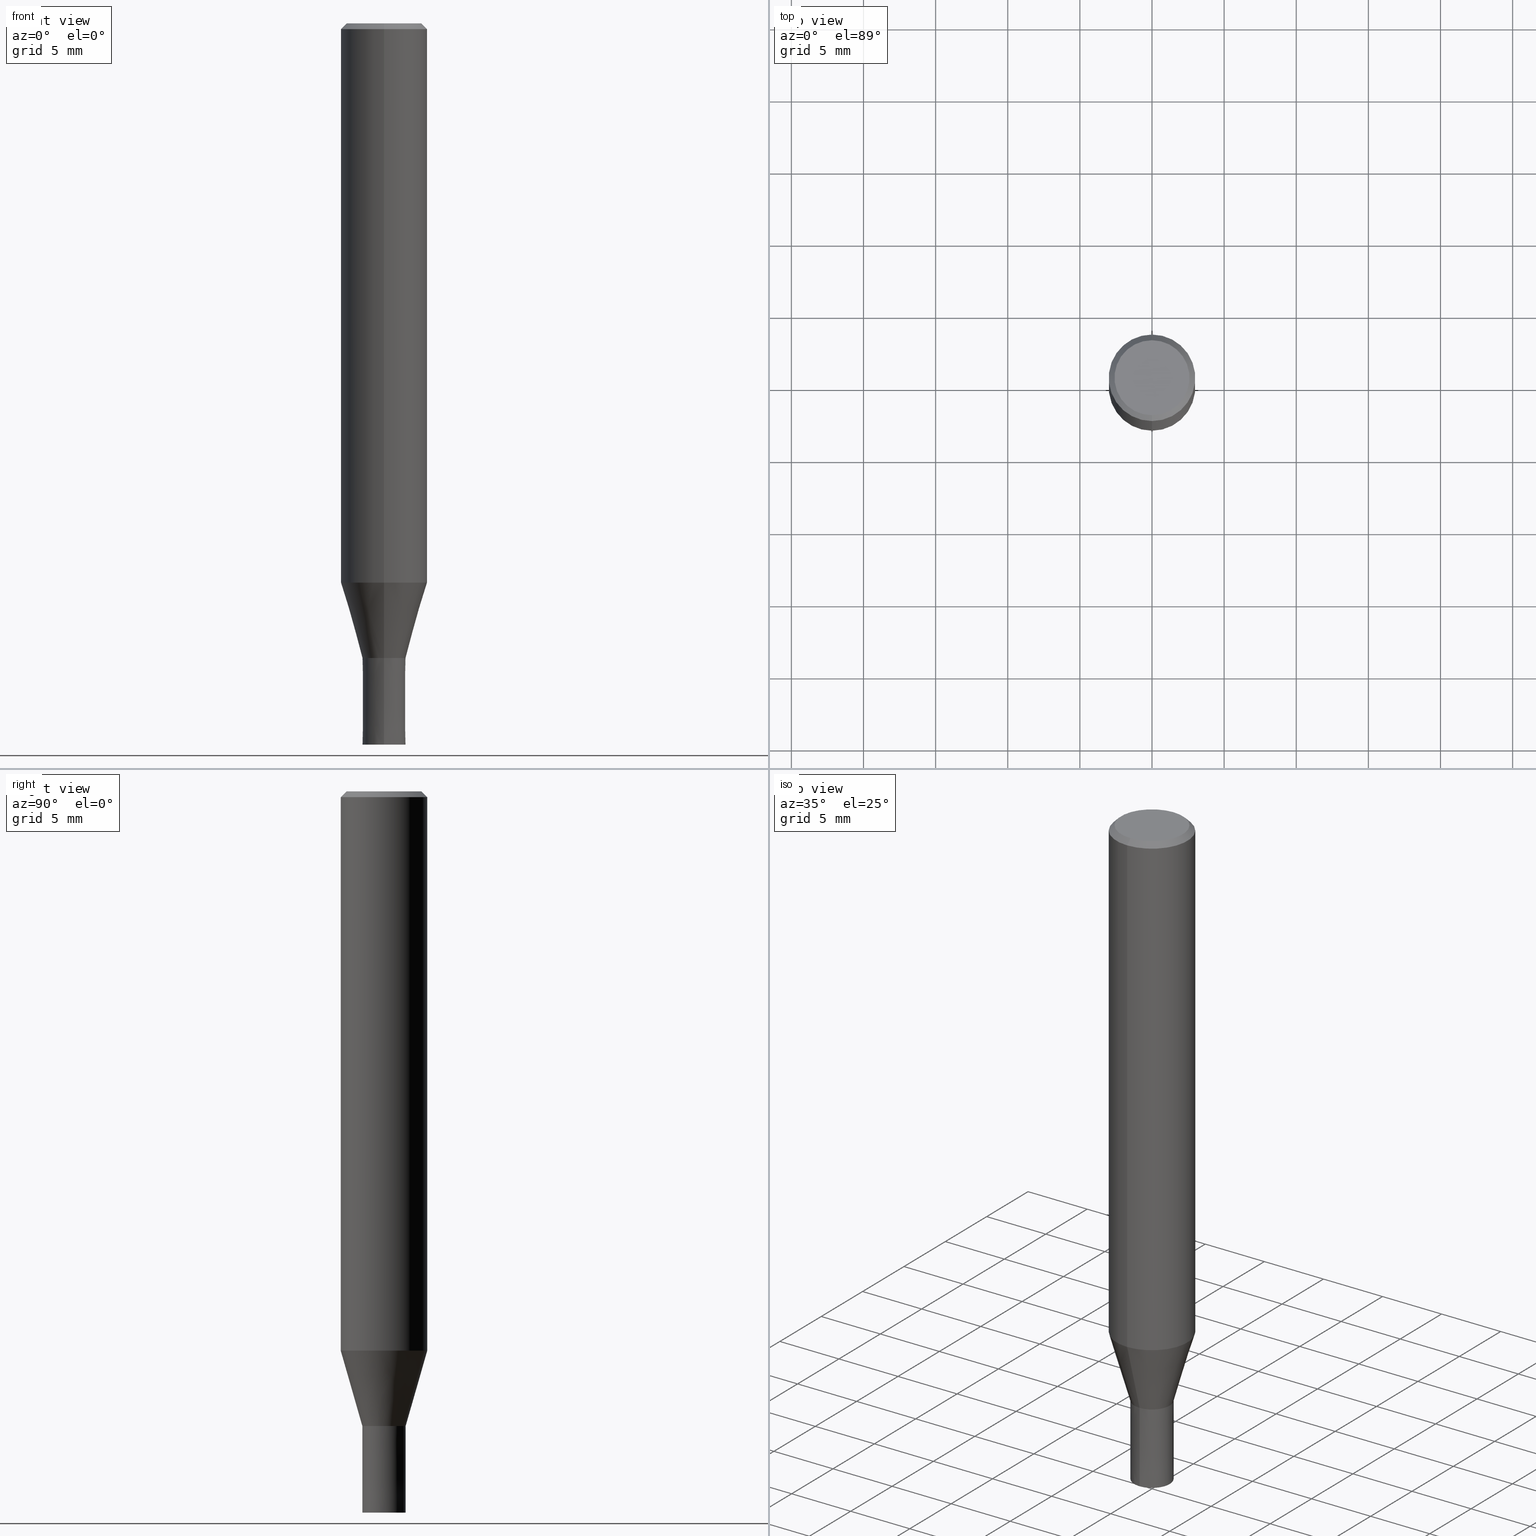
[diagram: canonical four-view strip — front | top / right | iso, engineering-drawing reading convention]
A machine part, canonical four-view strip (front | top / right | iso — engineering-drawing reading convention). The complete STEP part file that produces these views, byte-faithful:
ISO-10303-21;
HEADER;
FILE_DESCRIPTION(('no description'),'unknown implementation level');
FILE_NAME('HMS3030-0600-Huellk.stp','  ',('CIMSOURCE GmbH'),('CADClick - KiM GmbH - www.kimweb.de'),'unknown preprocess','ACIS','unknown authorization');
FILE_SCHEMA(('automotive_design'));
ENDSEC;
DATA;
#1=MECHANICAL_DESIGN_GEOMETRIC_PRESENTATION_REPRESENTATION(' ',(#14,#15,#16,#17,#18,#19,#20,#21,#22,#23,#24,#25,#26,#27,#28,#29,#30,#31,#32,#33,#34,#35,#36,#37,#38,#39,#40,#41,#42,#43,#44,#45,#46,#47,#48,#49,#50,#51,#52,#53,#54,#55,#56,#57,#58,#59,#60,#61,#62,#63,#64,#65,#66,#67,#68,#69,#70,#71,#72,#73,#74,#75,#76,#77,#78,#79,#80,#81,#82,#83,#84,#85,#86,#87,#88,#89),#10);
#2=PRODUCT_DEFINITION_CONTEXT('',#90,'design');
#3=APPLICATION_PROTOCOL_DEFINITION('INTERNATIONAL STANDARD','automotive_design',1994,#90);
#4=PRODUCT_CATEGORY_RELATIONSHIP('NONE','NONE',#91,#92);
#5=SHAPE_DEFINITION_REPRESENTATION(#93,#94);
#6=PRODUCT_DEFINITION_CONTEXT('',#95,'design');
#7=APPLICATION_PROTOCOL_DEFINITION('INTERNATIONAL STANDARD','automotive_design',1994,#95);
#8=PRODUCT_CATEGORY_RELATIONSHIP('NONE','NONE',#96,#97);
#9=SHAPE_DEFINITION_REPRESENTATION(#98,#99);
#10= (GEOMETRIC_REPRESENTATION_CONTEXT(3)GLOBAL_UNCERTAINTY_ASSIGNED_CONTEXT((#102))GLOBAL_UNIT_ASSIGNED_CONTEXT((#104,#105,#106))REPRESENTATION_CONTEXT('NONE','WORKSPACE'));
#14=STYLED_ITEM('',(#108),#109);
#15=STYLED_ITEM('',(#110),#111);
#16=STYLED_ITEM('',(#112),#113);
#17=STYLED_ITEM('',(#114),#115);
#18=STYLED_ITEM('',(#116),#117);
#19=STYLED_ITEM('',(#118),#119);
#20=STYLED_ITEM('',(#120),#121);
#21=STYLED_ITEM('',(#122),#123);
#22=STYLED_ITEM('',(#124),#125);
#23=STYLED_ITEM('',(#126),#127);
#24=STYLED_ITEM('',(#128),#129);
#25=STYLED_ITEM('',(#130),#131);
#26=STYLED_ITEM('',(#132),#133);
#27=STYLED_ITEM('',(#134),#135);
#28=STYLED_ITEM('',(#136),#137);
#29=STYLED_ITEM('',(#138),#139);
#30=STYLED_ITEM('',(#140),#141);
#31=STYLED_ITEM('',(#142),#143);
#32=STYLED_ITEM('',(#144),#145);
#33=STYLED_ITEM('',(#146),#147);
#34=STYLED_ITEM('',(#148),#149);
#35=STYLED_ITEM('',(#150),#151);
#36=STYLED_ITEM('',(#152),#153);
#37=STYLED_ITEM('',(#154),#155);
#38=STYLED_ITEM('',(#156),#157);
#39=STYLED_ITEM('',(#158),#159);
#40=STYLED_ITEM('',(#160),#161);
#41=STYLED_ITEM('',(#162),#163);
#42=STYLED_ITEM('',(#164),#165);
#43=STYLED_ITEM('',(#166),#167);
#44=STYLED_ITEM('',(#168),#169);
#45=STYLED_ITEM('',(#170),#171);
#46=STYLED_ITEM('',(#172),#173);
#47=STYLED_ITEM('',(#174),#175);
#48=STYLED_ITEM('',(#176),#177);
#49=STYLED_ITEM('',(#178),#179);
#50=STYLED_ITEM('',(#180),#181);
#51=STYLED_ITEM('',(#182),#183);
#52=STYLED_ITEM('',(#184),#185);
#53=STYLED_ITEM('',(#186),#187);
#54=STYLED_ITEM('',(#188),#189);
#55=STYLED_ITEM('',(#190),#191);
#56=STYLED_ITEM('',(#192),#193);
#57=STYLED_ITEM('',(#194),#195);
#58=STYLED_ITEM('',(#196),#197);
#59=STYLED_ITEM('',(#198),#199);
#60=STYLED_ITEM('',(#200),#201);
#61=STYLED_ITEM('',(#202),#203);
#62=STYLED_ITEM('',(#204),#205);
#63=STYLED_ITEM('',(#206),#207);
#64=STYLED_ITEM('',(#208),#209);
#65=STYLED_ITEM('',(#210),#211);
#66=STYLED_ITEM('',(#212),#213);
#67=STYLED_ITEM('',(#214),#215);
#68=STYLED_ITEM('',(#216),#217);
#69=STYLED_ITEM('',(#218),#219);
#70=STYLED_ITEM('',(#220),#221);
#71=STYLED_ITEM('',(#222),#223);
#72=STYLED_ITEM('',(#224),#225);
#73=STYLED_ITEM('',(#226),#227);
#74=STYLED_ITEM('',(#228),#229);
#75=STYLED_ITEM('',(#230),#231);
#76=STYLED_ITEM('',(#232),#233);
#77=STYLED_ITEM('',(#234),#235);
#78=STYLED_ITEM('',(#236),#237);
#79=STYLED_ITEM('',(#238),#239);
#80=STYLED_ITEM('',(#240),#241);
#81=STYLED_ITEM('',(#242),#243);
#82=STYLED_ITEM('',(#244),#245);
#83=STYLED_ITEM('',(#246),#247);
#84=STYLED_ITEM('',(#248),#249);
#85=STYLED_ITEM('',(#250),#251);
#86=STYLED_ITEM('',(#252),#253);
#87=STYLED_ITEM('',(#254),#255);
#88=STYLED_ITEM('',(#256),#257);
#89=STYLED_ITEM('',(#258),#259);
#90=APPLICATION_CONTEXT(' ');
#91=PRODUCT_CATEGORY('part','NONE');
#92=PRODUCT_RELATED_PRODUCT_CATEGORY('detail',' ',(#260));
#93=PRODUCT_DEFINITION_SHAPE('NONE','NONE',#261);
#94=ADVANCED_BREP_SHAPE_REPRESENTATION('1',(#223,#262),#10);
#95=APPLICATION_CONTEXT(' ');
#96=PRODUCT_CATEGORY('part','NONE');
#97=PRODUCT_RELATED_PRODUCT_CATEGORY('detail',' ',(#263));
#98=PRODUCT_DEFINITION_SHAPE('NONE','NONE',#264);
#99=ADVANCED_BREP_SHAPE_REPRESENTATION('2',(#153,#265),#10);
#102=UNCERTAINTY_MEASURE_WITH_UNIT(LENGTH_MEASURE(1.0E-006),#104,'','');
#104= (CONVERSION_BASED_UNIT('MILLIMETRE',#268)LENGTH_UNIT()NAMED_UNIT(#271));
#105= (NAMED_UNIT(#273)PLANE_ANGLE_UNIT()SI_UNIT($,.RADIAN.));
#106= (NAMED_UNIT(#273)SOLID_ANGLE_UNIT()SI_UNIT($,.STERADIAN.));
#108=PRESENTATION_STYLE_ASSIGNMENT((#279));
#109=EDGE_CURVE('',#211,#131,#280,.T.);
#110=PRESENTATION_STYLE_ASSIGNMENT((#281));
#111=EDGE_CURVE('',#231,#177,#282,.T.);
#112=PRESENTATION_STYLE_ASSIGNMENT((#283));
#113=ADVANCED_FACE('',(#284),#285,.T.);
#114=PRESENTATION_STYLE_ASSIGNMENT((#286));
#115=ADVANCED_FACE('',(#287),#288,.T.);
#116=PRESENTATION_STYLE_ASSIGNMENT((#289));
#117=VERTEX_POINT('',#290);
#118=PRESENTATION_STYLE_ASSIGNMENT((#291));
#119=ADVANCED_FACE('',(#292),#293,.T.);
#120=PRESENTATION_STYLE_ASSIGNMENT((#294));
#121=EDGE_CURVE('',#235,#151,#295,.T.);
#122=PRESENTATION_STYLE_ASSIGNMENT((#296));
#123=EDGE_CURVE('',#219,#205,#297,.T.);
#124=PRESENTATION_STYLE_ASSIGNMENT((#298));
#125=ADVANCED_FACE('',(#299,#300),#301,.T.);
#126=PRESENTATION_STYLE_ASSIGNMENT((#302));
#127=ADVANCED_FACE('',(#303),#304,.T.);
#128=PRESENTATION_STYLE_ASSIGNMENT((#305));
#129=EDGE_CURVE('',#179,#171,#306,.T.);
#130=PRESENTATION_STYLE_ASSIGNMENT((#307));
#131=VERTEX_POINT('',#308);
#132=PRESENTATION_STYLE_ASSIGNMENT((#309));
#133=VERTEX_POINT('',#310);
#134=PRESENTATION_STYLE_ASSIGNMENT((#311));
#135=VERTEX_POINT('',#312);
#136=PRESENTATION_STYLE_ASSIGNMENT((#313));
#137=VERTEX_POINT('',#314);
#138=PRESENTATION_STYLE_ASSIGNMENT((#315));
#139=ADVANCED_FACE('',(#316),#317,.T.);
#140=PRESENTATION_STYLE_ASSIGNMENT((#318));
#141=EDGE_CURVE('',#177,#175,#319,.T.);
#142=PRESENTATION_STYLE_ASSIGNMENT((#320));
#143=EDGE_CURVE('',#249,#231,#321,.T.);
#144=PRESENTATION_STYLE_ASSIGNMENT((#322));
#145=VERTEX_POINT('',#323);
#146=PRESENTATION_STYLE_ASSIGNMENT((#324));
#147=EDGE_CURVE('',#137,#189,#325,.T.);
#148=PRESENTATION_STYLE_ASSIGNMENT((#326));
#149=EDGE_CURVE('',#257,#135,#327,.T.);
#150=PRESENTATION_STYLE_ASSIGNMENT((#328));
#151=VERTEX_POINT('',#329);
#152=PRESENTATION_STYLE_ASSIGNMENT((#330));
#153=MANIFOLD_SOLID_BREP('2',#331);
#154=PRESENTATION_STYLE_ASSIGNMENT((#332));
#155=EDGE_CURVE('',#189,#137,#333,.T.);
#156=PRESENTATION_STYLE_ASSIGNMENT((#334));
#157=EDGE_CURVE('',#133,#135,#335,.T.);
#158=PRESENTATION_STYLE_ASSIGNMENT((#336));
#159=ADVANCED_FACE('',(#337),#338,.T.);
#160=PRESENTATION_STYLE_ASSIGNMENT((#339));
#161=EDGE_CURVE('',#145,#197,#340,.T.);
#162=PRESENTATION_STYLE_ASSIGNMENT((#341));
#163=ADVANCED_FACE('',(#342),#343,.T.);
#164=PRESENTATION_STYLE_ASSIGNMENT((#344));
#165=EDGE_CURVE('',#195,#117,#345,.T.);
#166=PRESENTATION_STYLE_ASSIGNMENT((#346));
#167=EDGE_CURVE('',#197,#137,#347,.T.);
#168=PRESENTATION_STYLE_ASSIGNMENT((#348));
#169=EDGE_CURVE('',#131,#211,#349,.T.);
#170=PRESENTATION_STYLE_ASSIGNMENT((#350));
#171=VERTEX_POINT('',#351);
#172=PRESENTATION_STYLE_ASSIGNMENT((#352));
#173=EDGE_CURVE('',#131,#117,#353,.T.);
#174=PRESENTATION_STYLE_ASSIGNMENT((#354));
#175=VERTEX_POINT('',#355);
#176=PRESENTATION_STYLE_ASSIGNMENT((#356));
#177=VERTEX_POINT('',#357);
#178=PRESENTATION_STYLE_ASSIGNMENT((#358));
#179=VERTEX_POINT('',#359);
#180=PRESENTATION_STYLE_ASSIGNMENT((#360));
#181=EDGE_CURVE('',#257,#245,#361,.T.);
#182=PRESENTATION_STYLE_ASSIGNMENT((#362));
#183=EDGE_CURVE('',#195,#211,#363,.T.);
#184=PRESENTATION_STYLE_ASSIGNMENT((#364));
#185=EDGE_CURVE('',#205,#131,#365,.T.);
#186=PRESENTATION_STYLE_ASSIGNMENT((#366));
#187=ADVANCED_FACE('',(#367),#368,.F.);
#188=PRESENTATION_STYLE_ASSIGNMENT((#369));
#189=VERTEX_POINT('',#370);
#190=PRESENTATION_STYLE_ASSIGNMENT((#371));
#191=EDGE_CURVE('',#189,#145,#372,.T.);
#192=PRESENTATION_STYLE_ASSIGNMENT((#373));
#193=EDGE_CURVE('',#175,#249,#374,.T.);
#194=PRESENTATION_STYLE_ASSIGNMENT((#375));
#195=VERTEX_POINT('',#376);
#196=PRESENTATION_STYLE_ASSIGNMENT((#377));
#197=VERTEX_POINT('',#378);
#198=PRESENTATION_STYLE_ASSIGNMENT((#379));
#199=EDGE_CURVE('',#171,#151,#380,.T.);
#200=PRESENTATION_STYLE_ASSIGNMENT((#381));
#201=EDGE_CURVE('',#135,#133,#382,.T.);
#202=PRESENTATION_STYLE_ASSIGNMENT((#383));
#203=ADVANCED_FACE('',(#384),#385,.T.);
#204=PRESENTATION_STYLE_ASSIGNMENT((#386));
#205=VERTEX_POINT('',#387);
#206=PRESENTATION_STYLE_ASSIGNMENT((#388));
#207=EDGE_CURVE('',#171,#179,#389,.T.);
#208=PRESENTATION_STYLE_ASSIGNMENT((#390));
#209=EDGE_CURVE('',#175,#177,#391,.T.);
#210=PRESENTATION_STYLE_ASSIGNMENT((#392));
#211=VERTEX_POINT('',#393);
#212=PRESENTATION_STYLE_ASSIGNMENT((#394));
#213=ADVANCED_FACE('',(#395),#396,.T.);
#214=PRESENTATION_STYLE_ASSIGNMENT((#397));
#215=ADVANCED_FACE('',(#398,#399),#400,.T.);
#216=PRESENTATION_STYLE_ASSIGNMENT((#401));
#217=EDGE_CURVE('',#235,#179,#402,.T.);
#218=PRESENTATION_STYLE_ASSIGNMENT((#403));
#219=VERTEX_POINT('',#404);
#220=PRESENTATION_STYLE_ASSIGNMENT((#405));
#221=EDGE_CURVE('',#205,#219,#406,.T.);
#222=PRESENTATION_STYLE_ASSIGNMENT((#407));
#223=MANIFOLD_SOLID_BREP('1',#408);
#224=PRESENTATION_STYLE_ASSIGNMENT((#409));
#225=EDGE_CURVE('',#151,#235,#410,.T.);
#226=PRESENTATION_STYLE_ASSIGNMENT((#411));
#227=ADVANCED_FACE('',(#412),#413,.F.);
#228=PRESENTATION_STYLE_ASSIGNMENT((#414));
#229=ADVANCED_FACE('',(#415,#416),#417,.T.);
#230=PRESENTATION_STYLE_ASSIGNMENT((#418));
#231=VERTEX_POINT('',#419);
#232=PRESENTATION_STYLE_ASSIGNMENT((#420));
#233=EDGE_CURVE('',#197,#145,#421,.T.);
#234=PRESENTATION_STYLE_ASSIGNMENT((#422));
#235=VERTEX_POINT('',#423);
#236=PRESENTATION_STYLE_ASSIGNMENT((#424));
#237=ADVANCED_FACE('',(#425),#426,.T.);
#238=PRESENTATION_STYLE_ASSIGNMENT((#427));
#239=ADVANCED_FACE('',(#428),#429,.T.);
#240=PRESENTATION_STYLE_ASSIGNMENT((#430));
#241=EDGE_CURVE('',#211,#219,#431,.T.);
#242=PRESENTATION_STYLE_ASSIGNMENT((#432));
#243=EDGE_CURVE('',#245,#257,#433,.T.);
#244=PRESENTATION_STYLE_ASSIGNMENT((#434));
#245=VERTEX_POINT('',#435);
#246=PRESENTATION_STYLE_ASSIGNMENT((#436));
#247=EDGE_CURVE('',#117,#195,#437,.T.);
#248=PRESENTATION_STYLE_ASSIGNMENT((#438));
#249=VERTEX_POINT('',#439);
#250=PRESENTATION_STYLE_ASSIGNMENT((#440));
#251=ADVANCED_FACE('',(#441,#442),#443,.T.);
#252=PRESENTATION_STYLE_ASSIGNMENT((#444));
#253=EDGE_CURVE('',#231,#249,#445,.T.);
#254=PRESENTATION_STYLE_ASSIGNMENT((#446));
#255=EDGE_CURVE('',#133,#245,#447,.T.);
#256=PRESENTATION_STYLE_ASSIGNMENT((#448));
#257=VERTEX_POINT('',#449);
#258=PRESENTATION_STYLE_ASSIGNMENT((#450));
#259=ADVANCED_FACE('',(#451),#452,.T.);
#260=PRODUCT('1','1','PART-1-DESC',(#453));
#261=PRODUCT_DEFINITION('NONE','NONE',#454,#2);
#262=AXIS2_PLACEMENT_3D('',#455,#456,#457);
#263=PRODUCT('2','2','PART-2-DESC',(#458));
#264=PRODUCT_DEFINITION('NONE','NONE',#459,#6);
#265=AXIS2_PLACEMENT_3D('',#460,#461,#462);
#268=LENGTH_MEASURE_WITH_UNIT(LENGTH_MEASURE(1.0),#463);
#271=DIMENSIONAL_EXPONENTS(1.0,0.0,0.0,0.0,0.0,0.0,0.0);
#273=DIMENSIONAL_EXPONENTS(0.0,0.0,0.0,0.0,0.0,0.0,0.0);
#279=CURVE_STYLE('',#464,POSITIVE_LENGTH_MEASURE(1.0E-006),#465);
#280=CIRCLE('',#466,3.0);
#281=CURVE_STYLE('',#467,POSITIVE_LENGTH_MEASURE(1.0E-006),#468);
#282=LINE('',#469,#470);
#283=SURFACE_STYLE_USAGE(.BOTH.,#471);
#284=FACE_OUTER_BOUND('',#472,.T.);
#285=CYLINDRICAL_SURFACE('',#473,0.675);
#286=SURFACE_STYLE_USAGE(.BOTH.,#474);
#287=FACE_OUTER_BOUND('',#475,.T.);
#288=CYLINDRICAL_SURFACE('',#476,0.675);
#289=POINT_STYLE(' ',#477,POSITIVE_LENGTH_MEASURE(1.0E-006),#478);
#290=CARTESIAN_POINT('',(0.0,3.0,-38.769));
#291=SURFACE_STYLE_USAGE(.BOTH.,#479);
#292=FACE_OUTER_BOUND('',#480,.T.);
#293=CYLINDRICAL_SURFACE('',#481,3.0);
#294=CURVE_STYLE('',#482,POSITIVE_LENGTH_MEASURE(1.0E-006),#483);
#295=CIRCLE('',#484,2.99995);
#296=CURVE_STYLE('',#485,POSITIVE_LENGTH_MEASURE(1.0E-006),#486);
#297=CIRCLE('',#487,2.6);
#298=SURFACE_STYLE_USAGE(.BOTH.,#488);
#299=FACE_OUTER_BOUND('',#489,.T.);
#300=FACE_BOUND('',#490,.T.);
#301=PLANE('',#491);
#302=SURFACE_STYLE_USAGE(.BOTH.,#492);
#303=FACE_OUTER_BOUND('',#493,.T.);
#304=CYLINDRICAL_SURFACE('',#494,3.0);
#305=CURVE_STYLE('',#495,POSITIVE_LENGTH_MEASURE(1.0E-006),#496);
#306=CIRCLE('',#497,1.49995);
#307=POINT_STYLE(' ',#498,POSITIVE_LENGTH_MEASURE(1.0E-006),#499);
#308=CARTESIAN_POINT('',(0.0,3.0,-0.399999999999999));
#309=POINT_STYLE(' ',#500,POSITIVE_LENGTH_MEASURE(1.0E-006),#501);
#310=CARTESIAN_POINT('',(8.26609288830105E-017,-0.675,-49.9));
#311=POINT_STYLE(' ',#502,POSITIVE_LENGTH_MEASURE(1.0E-006),#503);
#312=CARTESIAN_POINT('',(0.0,0.675,-49.9));
#313=POINT_STYLE(' ',#504,POSITIVE_LENGTH_MEASURE(1.0E-006),#505);
#314=CARTESIAN_POINT('',(1.83678707009818E-016,-1.4999,-44.0));
#315=SURFACE_STYLE_USAGE(.BOTH.,#506);
#316=FACE_OUTER_BOUND('',#507,.T.);
#317=CONICAL_SURFACE('',#508,2.24995,0.279258842899557);
#318=CURVE_STYLE('',#509,POSITIVE_LENGTH_MEASURE(1.0E-006),#510);
#319=CIRCLE('',#511,0.675);
#320=CURVE_STYLE('',#512,POSITIVE_LENGTH_MEASURE(1.0E-006),#513);
#321=CIRCLE('',#514,0.675);
#322=POINT_STYLE(' ',#515,POSITIVE_LENGTH_MEASURE(1.0E-006),#516);
#323=CARTESIAN_POINT('',(0.0,1.5,-50.0));
#324=CURVE_STYLE('',#517,POSITIVE_LENGTH_MEASURE(1.0E-006),#518);
#325=CIRCLE('',#519,1.4999);
#326=CURVE_STYLE('',#520,POSITIVE_LENGTH_MEASURE(1.0E-006),#521);
#327=LINE('',#522,#523);
#328=POINT_STYLE(' ',#524,POSITIVE_LENGTH_MEASURE(1.0E-006),#525);
#329=CARTESIAN_POINT('',(3.67375783114944E-016,-2.99995,-38.769));
#330=SURFACE_STYLE_USAGE(.BOTH.,#526);
#331=CLOSED_SHELL('',(#227,#239,#251,#203,#229,#187));
#332=CURVE_STYLE('',#527,POSITIVE_LENGTH_MEASURE(1.0E-006),#528);
#333=CIRCLE('',#529,1.4999);
#334=CURVE_STYLE('',#530,POSITIVE_LENGTH_MEASURE(1.0E-006),#531);
#335=CIRCLE('',#532,0.675);
#336=SURFACE_STYLE_USAGE(.BOTH.,#533);
#337=FACE_OUTER_BOUND('',#534,.T.);
#338=CONICAL_SURFACE('',#535,2.8,0.78539816339745);
#339=CURVE_STYLE('',#536,POSITIVE_LENGTH_MEASURE(1.0E-006),#537);
#340=CIRCLE('',#538,1.5);
#341=SURFACE_STYLE_USAGE(.BOTH.,#539);
#342=FACE_OUTER_BOUND('',#540,.T.);
#343=CONICAL_SURFACE('',#541,2.24995,0.279258842899557);
#344=CURVE_STYLE('',#542,POSITIVE_LENGTH_MEASURE(1.0E-006),#543);
#345=CIRCLE('',#544,3.0);
#346=CURVE_STYLE('',#545,POSITIVE_LENGTH_MEASURE(1.0E-006),#546);
#347=LINE('',#547,#548);
#348=CURVE_STYLE('',#549,POSITIVE_LENGTH_MEASURE(1.0E-006),#550);
#349=CIRCLE('',#551,3.0);
#350=POINT_STYLE(' ',#552,POSITIVE_LENGTH_MEASURE(1.0E-006),#553);
#351=CARTESIAN_POINT('',(1.83684830041587E-016,-1.49995,-44.0));
#352=CURVE_STYLE('',#554,POSITIVE_LENGTH_MEASURE(1.0E-006),#555);
#353=LINE('',#556,#557);
#354=POINT_STYLE(' ',#558,POSITIVE_LENGTH_MEASURE(1.0E-006),#559);
#355=CARTESIAN_POINT('',(0.0,0.675,-44.0));
#356=POINT_STYLE(' ',#560,POSITIVE_LENGTH_MEASURE(1.0E-006),#561);
#357=CARTESIAN_POINT('',(8.26609288830105E-017,-0.675,-44.0));
#358=POINT_STYLE(' ',#562,POSITIVE_LENGTH_MEASURE(1.0E-006),#563);
#359=CARTESIAN_POINT('',(0.0,1.49995,-44.0));
#360=CURVE_STYLE('',#564,POSITIVE_LENGTH_MEASURE(1.0E-006),#565);
#361=CIRCLE('',#566,0.675);
#362=CURVE_STYLE('',#567,POSITIVE_LENGTH_MEASURE(1.0E-006),#568);
#363=LINE('',#569,#570);
#364=CURVE_STYLE('',#571,POSITIVE_LENGTH_MEASURE(1.0E-006),#572);
#365=LINE('',#573,#574);
#366=SURFACE_STYLE_USAGE(.BOTH.,#575);
#367=FACE_OUTER_BOUND('',#576,.T.);
#368=CYLINDRICAL_SURFACE('',#577,0.675);
#369=POINT_STYLE(' ',#578,POSITIVE_LENGTH_MEASURE(1.0E-006),#579);
#370=CARTESIAN_POINT('',(0.0,1.4999,-44.0));
#371=CURVE_STYLE('',#580,POSITIVE_LENGTH_MEASURE(1.0E-006),#581);
#372=LINE('',#582,#583);
#373=CURVE_STYLE('',#584,POSITIVE_LENGTH_MEASURE(1.0E-006),#585);
#374=LINE('',#586,#587);
#375=POINT_STYLE(' ',#588,POSITIVE_LENGTH_MEASURE(1.0E-006),#589);
#376=CARTESIAN_POINT('',(3.67381906146713E-016,-3.0,-38.769));
#377=POINT_STYLE(' ',#590,POSITIVE_LENGTH_MEASURE(1.0E-006),#591);
#378=CARTESIAN_POINT('',(1.83690953073357E-016,-1.5,-50.0));
#379=CURVE_STYLE('',#592,POSITIVE_LENGTH_MEASURE(1.0E-006),#593);
#380=LINE('',#594,#595);
#381=CURVE_STYLE('',#596,POSITIVE_LENGTH_MEASURE(1.0E-006),#597);
#382=CIRCLE('',#598,0.675);
#383=SURFACE_STYLE_USAGE(.BOTH.,#599);
#384=FACE_OUTER_BOUND('',#600,.T.);
#385=CONICAL_SURFACE('',#601,1.49995,1.66666666651216E-005);
#386=POINT_STYLE(' ',#602,POSITIVE_LENGTH_MEASURE(1.0E-006),#603);
#387=CARTESIAN_POINT('',(0.0,2.6,0.0));
#388=CURVE_STYLE('',#604,POSITIVE_LENGTH_MEASURE(1.0E-006),#605);
#389=CIRCLE('',#606,1.49995);
#390=CURVE_STYLE('',#607,POSITIVE_LENGTH_MEASURE(1.0E-006),#608);
#391=CIRCLE('',#609,0.675);
#392=POINT_STYLE(' ',#610,POSITIVE_LENGTH_MEASURE(1.0E-006),#611);
#393=CARTESIAN_POINT('',(3.67381906146713E-016,-3.0,-0.399999999999999));
#394=SURFACE_STYLE_USAGE(.BOTH.,#612);
#395=FACE_OUTER_BOUND('',#613,.T.);
#396=PLANE('',#614);
#397=SURFACE_STYLE_USAGE(.BOTH.,#615);
#398=FACE_BOUND('',#616,.T.);
#399=FACE_OUTER_BOUND('',#617,.T.);
#400=PLANE('',#618);
#401=CURVE_STYLE('',#619,POSITIVE_LENGTH_MEASURE(1.0E-006),#620);
#402=LINE('',#621,#622);
#403=POINT_STYLE(' ',#623,POSITIVE_LENGTH_MEASURE(1.0E-006),#624);
#404=CARTESIAN_POINT('',(3.18397651993818E-016,-2.6,0.0));
#405=CURVE_STYLE('',#625,POSITIVE_LENGTH_MEASURE(1.0E-006),#626);
#406=CIRCLE('',#627,2.6);
#407=SURFACE_STYLE_USAGE(.BOTH.,#628);
#408=CLOSED_SHELL('',(#113,#163,#119,#159,#125,#237,#259,#127,#139,#215,#115,#213));
#409=CURVE_STYLE('',#629,POSITIVE_LENGTH_MEASURE(1.0E-006),#630);
#410=CIRCLE('',#631,2.99995);
#411=SURFACE_STYLE_USAGE(.BOTH.,#632);
#412=FACE_OUTER_BOUND('',#633,.T.);
#413=CYLINDRICAL_SURFACE('',#634,0.675);
#414=SURFACE_STYLE_USAGE(.BOTH.,#635);
#415=FACE_OUTER_BOUND('',#636,.T.);
#416=FACE_BOUND('',#637,.T.);
#417=PLANE('',#638);
#418=POINT_STYLE(' ',#639,POSITIVE_LENGTH_MEASURE(1.0E-006),#640);
#419=CARTESIAN_POINT('',(8.26609288830105E-017,-0.675,-50.0));
#420=CURVE_STYLE('',#641,POSITIVE_LENGTH_MEASURE(1.0E-006),#642);
#421=CIRCLE('',#643,1.5);
#422=POINT_STYLE(' ',#644,POSITIVE_LENGTH_MEASURE(1.0E-006),#645);
#423=CARTESIAN_POINT('',(0.0,2.99995,-38.769));
#424=SURFACE_STYLE_USAGE(.BOTH.,#646);
#425=FACE_OUTER_BOUND('',#647,.T.);
#426=PLANE('',#648);
#427=SURFACE_STYLE_USAGE(.BOTH.,#649);
#428=FACE_OUTER_BOUND('',#650,.T.);
#429=CONICAL_SURFACE('',#651,1.49995,1.66666666651216E-005);
#430=CURVE_STYLE('',#652,POSITIVE_LENGTH_MEASURE(1.0E-006),#653);
#431=LINE('',#654,#655);
#432=CURVE_STYLE('',#656,POSITIVE_LENGTH_MEASURE(1.0E-006),#657);
#433=CIRCLE('',#658,0.675);
#434=POINT_STYLE(' ',#659,POSITIVE_LENGTH_MEASURE(1.0E-006),#660);
#435=CARTESIAN_POINT('',(8.26609288830105E-017,-0.675,-44.0));
#436=CURVE_STYLE('',#661,POSITIVE_LENGTH_MEASURE(1.0E-006),#662);
#437=CIRCLE('',#663,3.0);
#438=POINT_STYLE(' ',#664,POSITIVE_LENGTH_MEASURE(1.0E-006),#665);
#439=CARTESIAN_POINT('',(0.0,0.675,-50.0));
#440=SURFACE_STYLE_USAGE(.BOTH.,#666);
#441=FACE_OUTER_BOUND('',#667,.T.);
#442=FACE_BOUND('',#668,.T.);
#443=PLANE('',#669);
#444=CURVE_STYLE('',#670,POSITIVE_LENGTH_MEASURE(1.0E-006),#671);
#445=CIRCLE('',#672,0.675);
#446=CURVE_STYLE('',#673,POSITIVE_LENGTH_MEASURE(1.0E-006),#674);
#447=LINE('',#675,#676);
#448=POINT_STYLE(' ',#677,POSITIVE_LENGTH_MEASURE(1.0E-006),#678);
#449=CARTESIAN_POINT('',(0.0,0.675,-44.0));
#450=SURFACE_STYLE_USAGE(.BOTH.,#679);
#451=FACE_OUTER_BOUND('',#680,.T.);
#452=CONICAL_SURFACE('',#681,2.8,0.78539816339745);
#453=PRODUCT_CONTEXT('',#90,'mechanical');
#454=PRODUCT_DEFINITION_FORMATION_WITH_SPECIFIED_SOURCE(' ','NONE',#260,.NOT_KNOWN.);
#455=CARTESIAN_POINT('',(0.0,0.0,0.0));
#456=DIRECTION('',(0.0,0.0,1.0));
#457=DIRECTION('',(1.0,0.0,0.0));
#458=PRODUCT_CONTEXT('',#95,'mechanical');
#459=PRODUCT_DEFINITION_FORMATION_WITH_SPECIFIED_SOURCE(' ','NONE',#263,.NOT_KNOWN.);
#460=CARTESIAN_POINT('',(0.0,0.0,0.0));
#461=DIRECTION('',(0.0,0.0,1.0));
#462=DIRECTION('',(1.0,0.0,0.0));
#463= (NAMED_UNIT(#271)LENGTH_UNIT()SI_UNIT(.MILLI.,.METRE.));
#464=DRAUGHTING_PRE_DEFINED_CURVE_FONT('continuous');
#465=COLOUR_RGB('',0.498039215803146,0.498039215803146,0.498039215803146);
#466=AXIS2_PLACEMENT_3D('',#683,#684,#685);
#467=DRAUGHTING_PRE_DEFINED_CURVE_FONT('continuous');
#468=COLOUR_RGB('',0.800000011920929,0.800000011920929,0.800000011920929);
#469=CARTESIAN_POINT('',(8.26609288830105E-017,-0.675,-47.0));
#470=VECTOR('',#686,1.0);
#471=SURFACE_SIDE_STYLE('',(#687));
#472=EDGE_LOOP('',(#688,#689,#690,#691));
#473=AXIS2_PLACEMENT_3D('',#692,#693,#694);
#474=SURFACE_SIDE_STYLE('',(#695));
#475=EDGE_LOOP('',(#696,#697,#698,#699));
#476=AXIS2_PLACEMENT_3D('',#700,#701,#702);
#477=PRE_DEFINED_MARKER('');
#478=COLOUR_RGB('',0.498039215803146,0.498039215803146,0.498039215803146);
#479=SURFACE_SIDE_STYLE('',(#703));
#480=EDGE_LOOP('',(#704,#705,#706,#707));
#481=AXIS2_PLACEMENT_3D('',#708,#709,#710);
#482=DRAUGHTING_PRE_DEFINED_CURVE_FONT('continuous');
#483=COLOUR_RGB('',0.498039215803146,0.498039215803146,0.498039215803146);
#484=AXIS2_PLACEMENT_3D('',#711,#712,#713);
#485=DRAUGHTING_PRE_DEFINED_CURVE_FONT('continuous');
#486=COLOUR_RGB('',0.498039215803146,0.498039215803146,0.498039215803146);
#487=AXIS2_PLACEMENT_3D('',#714,#715,#716);
#488=SURFACE_SIDE_STYLE('',(#717));
#489=EDGE_LOOP('',(#718,#719));
#490=EDGE_LOOP('',(#720,#721));
#491=AXIS2_PLACEMENT_3D('',#722,#723,#724);
#492=SURFACE_SIDE_STYLE('',(#725));
#493=EDGE_LOOP('',(#726,#727,#728,#729));
#494=AXIS2_PLACEMENT_3D('',#730,#731,#732);
#495=DRAUGHTING_PRE_DEFINED_CURVE_FONT('continuous');
#496=COLOUR_RGB('',0.498039215803146,0.498039215803146,0.498039215803146);
#497=AXIS2_PLACEMENT_3D('',#733,#734,#735);
#498=PRE_DEFINED_MARKER('');
#499=COLOUR_RGB('',0.498039215803146,0.498039215803146,0.498039215803146);
#500=PRE_DEFINED_MARKER('');
#501=COLOUR_RGB('',0.498039215803146,0.498039215803146,0.498039215803146);
#502=PRE_DEFINED_MARKER('');
#503=COLOUR_RGB('',0.498039215803146,0.498039215803146,0.498039215803146);
#504=PRE_DEFINED_MARKER('');
#505=COLOUR_RGB('',0.800000011920929,0.800000011920929,0.800000011920929);
#506=SURFACE_SIDE_STYLE('',(#736));
#507=EDGE_LOOP('',(#737,#738,#739,#740));
#508=AXIS2_PLACEMENT_3D('',#741,#742,#743);
#509=DRAUGHTING_PRE_DEFINED_CURVE_FONT('continuous');
#510=COLOUR_RGB('',0.800000011920929,0.800000011920929,0.800000011920929);
#511=AXIS2_PLACEMENT_3D('',#744,#745,#746);
#512=DRAUGHTING_PRE_DEFINED_CURVE_FONT('continuous');
#513=COLOUR_RGB('',0.800000011920929,0.800000011920929,0.800000011920929);
#514=AXIS2_PLACEMENT_3D('',#747,#748,#749);
#515=PRE_DEFINED_MARKER('');
#516=COLOUR_RGB('',0.800000011920929,0.800000011920929,0.800000011920929);
#517=DRAUGHTING_PRE_DEFINED_CURVE_FONT('continuous');
#518=COLOUR_RGB('',0.800000011920929,0.800000011920929,0.800000011920929);
#519=AXIS2_PLACEMENT_3D('',#750,#751,#752);
#520=DRAUGHTING_PRE_DEFINED_CURVE_FONT('continuous');
#521=COLOUR_RGB('',0.498039215803146,0.498039215803146,0.498039215803146);
#522=CARTESIAN_POINT('',(-8.26609288830105E-017,0.675,-46.95));
#523=VECTOR('',#753,1.0);
#524=PRE_DEFINED_MARKER('');
#525=COLOUR_RGB('',0.498039215803146,0.498039215803146,0.498039215803146);
#526=SURFACE_SIDE_STYLE('',(#754));
#527=DRAUGHTING_PRE_DEFINED_CURVE_FONT('continuous');
#528=COLOUR_RGB('',0.800000011920929,0.800000011920929,0.800000011920929);
#529=AXIS2_PLACEMENT_3D('',#755,#756,#757);
#530=DRAUGHTING_PRE_DEFINED_CURVE_FONT('continuous');
#531=COLOUR_RGB('',0.498039215803146,0.498039215803146,0.498039215803146);
#532=AXIS2_PLACEMENT_3D('',#758,#759,#760);
#533=SURFACE_SIDE_STYLE('',(#761));
#534=EDGE_LOOP('',(#762,#763,#764,#765));
#535=AXIS2_PLACEMENT_3D('',#766,#767,#768);
#536=DRAUGHTING_PRE_DEFINED_CURVE_FONT('continuous');
#537=COLOUR_RGB('',0.800000011920929,0.800000011920929,0.800000011920929);
#538=AXIS2_PLACEMENT_3D('',#769,#770,#771);
#539=SURFACE_SIDE_STYLE('',(#772));
#540=EDGE_LOOP('',(#773,#774,#775,#776));
#541=AXIS2_PLACEMENT_3D('',#777,#778,#779);
#542=DRAUGHTING_PRE_DEFINED_CURVE_FONT('continuous');
#543=COLOUR_RGB('',0.498039215803146,0.498039215803146,0.498039215803146);
#544=AXIS2_PLACEMENT_3D('',#780,#781,#782);
#545=DRAUGHTING_PRE_DEFINED_CURVE_FONT('continuous');
#546=COLOUR_RGB('',0.800000011920929,0.800000011920929,0.800000011920929);
#547=CARTESIAN_POINT('',(1.83684830041587E-016,-1.49995,-47.0));
#548=VECTOR('',#783,1.0);
#549=DRAUGHTING_PRE_DEFINED_CURVE_FONT('continuous');
#550=COLOUR_RGB('',0.498039215803146,0.498039215803146,0.498039215803146);
#551=AXIS2_PLACEMENT_3D('',#784,#785,#786);
#552=PRE_DEFINED_MARKER('');
#553=COLOUR_RGB('',0.498039215803146,0.498039215803146,0.498039215803146);
#554=DRAUGHTING_PRE_DEFINED_CURVE_FONT('continuous');
#555=COLOUR_RGB('',0.498039215803146,0.498039215803146,0.498039215803146);
#556=CARTESIAN_POINT('',(-3.67381906146713E-016,3.0,-19.5845));
#557=VECTOR('',#787,1.0);
#558=PRE_DEFINED_MARKER('');
#559=COLOUR_RGB('',0.800000011920929,0.800000011920929,0.800000011920929);
#560=PRE_DEFINED_MARKER('');
#561=COLOUR_RGB('',0.800000011920929,0.800000011920929,0.800000011920929);
#562=PRE_DEFINED_MARKER('');
#563=COLOUR_RGB('',0.498039215803146,0.498039215803146,0.498039215803146);
#564=DRAUGHTING_PRE_DEFINED_CURVE_FONT('continuous');
#565=COLOUR_RGB('',0.498039215803146,0.498039215803146,0.498039215803146);
#566=AXIS2_PLACEMENT_3D('',#788,#789,#790);
#567=DRAUGHTING_PRE_DEFINED_CURVE_FONT('continuous');
#568=COLOUR_RGB('',0.498039215803146,0.498039215803146,0.498039215803146);
#569=CARTESIAN_POINT('',(3.67381906146713E-016,-3.0,-19.5845));
#570=VECTOR('',#791,1.0);
#571=DRAUGHTING_PRE_DEFINED_CURVE_FONT('continuous');
#572=COLOUR_RGB('',0.498039215803146,0.498039215803146,0.498039215803146);
#573=CARTESIAN_POINT('',(-3.42889779070266E-016,2.8,-0.199999999999996));
#574=VECTOR('',#792,1.0);
#575=SURFACE_SIDE_STYLE('',(#793));
#576=EDGE_LOOP('',(#794,#795,#796,#797));
#577=AXIS2_PLACEMENT_3D('',#798,#799,#800);
#578=PRE_DEFINED_MARKER('');
#579=COLOUR_RGB('',0.800000011920929,0.800000011920929,0.800000011920929);
#580=DRAUGHTING_PRE_DEFINED_CURVE_FONT('continuous');
#581=COLOUR_RGB('',0.800000011920929,0.800000011920929,0.800000011920929);
#582=CARTESIAN_POINT('',(-1.83684830041587E-016,1.49995,-47.0));
#583=VECTOR('',#801,1.0);
#584=DRAUGHTING_PRE_DEFINED_CURVE_FONT('continuous');
#585=COLOUR_RGB('',0.800000011920929,0.800000011920929,0.800000011920929);
#586=CARTESIAN_POINT('',(-8.26609288830105E-017,0.675,-47.0));
#587=VECTOR('',#802,1.0);
#588=PRE_DEFINED_MARKER('');
#589=COLOUR_RGB('',0.498039215803146,0.498039215803146,0.498039215803146);
#590=PRE_DEFINED_MARKER('');
#591=COLOUR_RGB('',0.800000011920929,0.800000011920929,0.800000011920929);
#592=DRAUGHTING_PRE_DEFINED_CURVE_FONT('continuous');
#593=COLOUR_RGB('',0.498039215803146,0.498039215803146,0.498039215803146);
#594=CARTESIAN_POINT('',(2.75530306578266E-016,-2.24995,-41.3845));
#595=VECTOR('',#803,1.0);
#596=DRAUGHTING_PRE_DEFINED_CURVE_FONT('continuous');
#597=COLOUR_RGB('',0.498039215803146,0.498039215803146,0.498039215803146);
#598=AXIS2_PLACEMENT_3D('',#804,#805,#806);
#599=SURFACE_SIDE_STYLE('',(#807));
#600=EDGE_LOOP('',(#808,#809,#810,#811));
#601=AXIS2_PLACEMENT_3D('',#812,#813,#814);
#602=PRE_DEFINED_MARKER('');
#603=COLOUR_RGB('',0.498039215803146,0.498039215803146,0.498039215803146);
#604=DRAUGHTING_PRE_DEFINED_CURVE_FONT('continuous');
#605=COLOUR_RGB('',0.498039215803146,0.498039215803146,0.498039215803146);
#606=AXIS2_PLACEMENT_3D('',#815,#816,#817);
#607=DRAUGHTING_PRE_DEFINED_CURVE_FONT('continuous');
#608=COLOUR_RGB('',0.800000011920929,0.800000011920929,0.800000011920929);
#609=AXIS2_PLACEMENT_3D('',#818,#819,#820);
#610=PRE_DEFINED_MARKER('');
#611=COLOUR_RGB('',0.498039215803146,0.498039215803146,0.498039215803146);
#612=SURFACE_SIDE_STYLE('',(#821));
#613=EDGE_LOOP('',(#822,#823));
#614=AXIS2_PLACEMENT_3D('',#824,#825,#826);
#615=SURFACE_SIDE_STYLE('',(#827));
#616=EDGE_LOOP('',(#828,#829));
#617=EDGE_LOOP('',(#830,#831));
#618=AXIS2_PLACEMENT_3D('',#832,#833,#834);
#619=DRAUGHTING_PRE_DEFINED_CURVE_FONT('continuous');
#620=COLOUR_RGB('',0.498039215803146,0.498039215803146,0.498039215803146);
#621=CARTESIAN_POINT('',(-2.75530306578266E-016,2.24995,-41.3845));
#622=VECTOR('',#835,1.0);
#623=PRE_DEFINED_MARKER('');
#624=COLOUR_RGB('',0.498039215803146,0.498039215803146,0.498039215803146);
#625=DRAUGHTING_PRE_DEFINED_CURVE_FONT('continuous');
#626=COLOUR_RGB('',0.498039215803146,0.498039215803146,0.498039215803146);
#627=AXIS2_PLACEMENT_3D('',#836,#837,#838);
#628=SURFACE_SIDE_STYLE('',(#839));
#629=DRAUGHTING_PRE_DEFINED_CURVE_FONT('continuous');
#630=COLOUR_RGB('',0.498039215803146,0.498039215803146,0.498039215803146);
#631=AXIS2_PLACEMENT_3D('',#840,#841,#842);
#632=SURFACE_SIDE_STYLE('',(#843));
#633=EDGE_LOOP('',(#844,#845,#846,#847));
#634=AXIS2_PLACEMENT_3D('',#848,#849,#850);
#635=SURFACE_SIDE_STYLE('',(#851));
#636=EDGE_LOOP('',(#852,#853));
#637=EDGE_LOOP('',(#854,#855));
#638=AXIS2_PLACEMENT_3D('',#856,#857,#858);
#639=PRE_DEFINED_MARKER('');
#640=COLOUR_RGB('',0.800000011920929,0.800000011920929,0.800000011920929);
#641=DRAUGHTING_PRE_DEFINED_CURVE_FONT('continuous');
#642=COLOUR_RGB('',0.800000011920929,0.800000011920929,0.800000011920929);
#643=AXIS2_PLACEMENT_3D('',#859,#860,#861);
#644=PRE_DEFINED_MARKER('');
#645=COLOUR_RGB('',0.498039215803146,0.498039215803146,0.498039215803146);
#646=SURFACE_SIDE_STYLE('',(#862));
#647=EDGE_LOOP('',(#863,#864));
#648=AXIS2_PLACEMENT_3D('',#865,#866,#867);
#649=SURFACE_SIDE_STYLE('',(#868));
#650=EDGE_LOOP('',(#869,#870,#871,#872));
#651=AXIS2_PLACEMENT_3D('',#873,#874,#875);
#652=DRAUGHTING_PRE_DEFINED_CURVE_FONT('continuous');
#653=COLOUR_RGB('',0.498039215803146,0.498039215803146,0.498039215803146);
#654=CARTESIAN_POINT('',(3.42889779070266E-016,-2.8,-0.199999999999996));
#655=VECTOR('',#876,1.0);
#656=DRAUGHTING_PRE_DEFINED_CURVE_FONT('continuous');
#657=COLOUR_RGB('',0.498039215803146,0.498039215803146,0.498039215803146);
#658=AXIS2_PLACEMENT_3D('',#877,#878,#879);
#659=PRE_DEFINED_MARKER('');
#660=COLOUR_RGB('',0.498039215803146,0.498039215803146,0.498039215803146);
#661=DRAUGHTING_PRE_DEFINED_CURVE_FONT('continuous');
#662=COLOUR_RGB('',0.498039215803146,0.498039215803146,0.498039215803146);
#663=AXIS2_PLACEMENT_3D('',#880,#881,#882);
#664=PRE_DEFINED_MARKER('');
#665=COLOUR_RGB('',0.800000011920929,0.800000011920929,0.800000011920929);
#666=SURFACE_SIDE_STYLE('',(#883));
#667=EDGE_LOOP('',(#884,#885));
#668=EDGE_LOOP('',(#886,#887));
#669=AXIS2_PLACEMENT_3D('',#888,#889,#890);
#670=DRAUGHTING_PRE_DEFINED_CURVE_FONT('continuous');
#671=COLOUR_RGB('',0.800000011920929,0.800000011920929,0.800000011920929);
#672=AXIS2_PLACEMENT_3D('',#891,#892,#893);
#673=DRAUGHTING_PRE_DEFINED_CURVE_FONT('continuous');
#674=COLOUR_RGB('',0.498039215803146,0.498039215803146,0.498039215803146);
#675=CARTESIAN_POINT('',(8.26609288830105E-017,-0.675,-46.95));
#676=VECTOR('',#894,1.0);
#677=PRE_DEFINED_MARKER('');
#678=COLOUR_RGB('',0.498039215803146,0.498039215803146,0.498039215803146);
#679=SURFACE_SIDE_STYLE('',(#895));
#680=EDGE_LOOP('',(#896,#897,#898,#899));
#681=AXIS2_PLACEMENT_3D('',#900,#901,#902);
#683=CARTESIAN_POINT('',(0.0,0.0,-0.399999999999999));
#684=DIRECTION('',(0.0,0.0,-1.0));
#685=DIRECTION('',(0.0,1.0,0.0));
#686=DIRECTION('',(0.0,-0.0,1.0));
#687=SURFACE_STYLE_FILL_AREA(#903);
#688=ORIENTED_EDGE('',*,*,#149,.F.);
#689=ORIENTED_EDGE('',*,*,#181,.T.);
#690=ORIENTED_EDGE('',*,*,#255,.F.);
#691=ORIENTED_EDGE('',*,*,#201,.F.);
#692=CARTESIAN_POINT('',(0.0,0.0,-46.95));
#693=DIRECTION('',(-0.0,-0.0,1.0));
#694=DIRECTION('',(0.0,1.0,0.0));
#695=SURFACE_STYLE_FILL_AREA(#904);
#696=ORIENTED_EDGE('',*,*,#149,.T.);
#697=ORIENTED_EDGE('',*,*,#157,.F.);
#698=ORIENTED_EDGE('',*,*,#255,.T.);
#699=ORIENTED_EDGE('',*,*,#243,.T.);
#700=CARTESIAN_POINT('',(0.0,0.0,-46.95));
#701=DIRECTION('',(-0.0,-0.0,1.0));
#702=DIRECTION('',(0.0,1.0,0.0));
#703=SURFACE_STYLE_FILL_AREA(#905);
#704=ORIENTED_EDGE('',*,*,#173,.F.);
#705=ORIENTED_EDGE('',*,*,#169,.T.);
#706=ORIENTED_EDGE('',*,*,#183,.F.);
#707=ORIENTED_EDGE('',*,*,#247,.F.);
#708=CARTESIAN_POINT('',(0.0,0.0,-19.5845));
#709=DIRECTION('',(-0.0,-0.0,1.0));
#710=DIRECTION('',(0.0,1.0,0.0));
#711=CARTESIAN_POINT('',(0.0,0.0,-38.769));
#712=DIRECTION('',(0.0,0.0,-1.0));
#713=DIRECTION('',(0.0,1.0,0.0));
#714=CARTESIAN_POINT('',(0.0,0.0,0.0));
#715=DIRECTION('',(0.0,0.0,-1.0));
#716=DIRECTION('',(0.0,1.0,0.0));
#717=SURFACE_STYLE_FILL_AREA(#906);
#718=ORIENTED_EDGE('',*,*,#247,.T.);
#719=ORIENTED_EDGE('',*,*,#165,.T.);
#720=ORIENTED_EDGE('',*,*,#121,.F.);
#721=ORIENTED_EDGE('',*,*,#225,.F.);
#722=CARTESIAN_POINT('',(0.0,1.5,-38.769));
#723=DIRECTION('',(0.0,0.0,-1.0));
#724=DIRECTION('',(0.0,1.0,0.0));
#725=SURFACE_STYLE_FILL_AREA(#907);
#726=ORIENTED_EDGE('',*,*,#173,.T.);
#727=ORIENTED_EDGE('',*,*,#165,.F.);
#728=ORIENTED_EDGE('',*,*,#183,.T.);
#729=ORIENTED_EDGE('',*,*,#109,.T.);
#730=CARTESIAN_POINT('',(0.0,0.0,-19.5845));
#731=DIRECTION('',(-0.0,-0.0,1.0));
#732=DIRECTION('',(0.0,1.0,0.0));
#733=CARTESIAN_POINT('',(0.0,0.0,-44.0));
#734=DIRECTION('',(0.0,0.0,-1.0));
#735=DIRECTION('',(0.0,1.0,0.0));
#736=SURFACE_STYLE_FILL_AREA(#908);
#737=ORIENTED_EDGE('',*,*,#217,.T.);
#738=ORIENTED_EDGE('',*,*,#207,.F.);
#739=ORIENTED_EDGE('',*,*,#199,.T.);
#740=ORIENTED_EDGE('',*,*,#225,.T.);
#741=CARTESIAN_POINT('',(0.0,0.0,-41.3845));
#742=DIRECTION('',(-0.0,-0.0,1.0));
#743=DIRECTION('',(0.0,1.0,0.0));
#744=CARTESIAN_POINT('',(0.0,0.0,-44.0));
#745=DIRECTION('',(0.0,0.0,-1.0));
#746=DIRECTION('',(0.0,1.0,0.0));
#747=CARTESIAN_POINT('',(0.0,0.0,-50.0));
#748=DIRECTION('',(0.0,0.0,-1.0));
#749=DIRECTION('',(0.0,1.0,0.0));
#750=CARTESIAN_POINT('',(0.0,0.0,-44.0));
#751=DIRECTION('',(0.0,0.0,-1.0));
#752=DIRECTION('',(0.0,1.0,0.0));
#753=DIRECTION('',(0.0,0.0,-1.0));
#754=SURFACE_STYLE_FILL_AREA(#909);
#755=CARTESIAN_POINT('',(0.0,0.0,-44.0));
#756=DIRECTION('',(0.0,0.0,-1.0));
#757=DIRECTION('',(0.0,1.0,0.0));
#758=CARTESIAN_POINT('',(0.0,0.0,-49.9));
#759=DIRECTION('',(0.0,0.0,-1.0));
#760=DIRECTION('',(0.0,1.0,0.0));
#761=SURFACE_STYLE_FILL_AREA(#910);
#762=ORIENTED_EDGE('',*,*,#185,.F.);
#763=ORIENTED_EDGE('',*,*,#221,.T.);
#764=ORIENTED_EDGE('',*,*,#241,.F.);
#765=ORIENTED_EDGE('',*,*,#169,.F.);
#766=CARTESIAN_POINT('',(0.0,0.0,-0.199999999999996));
#767=DIRECTION('',(0.0,-0.0,-1.0));
#768=DIRECTION('',(0.0,1.0,0.0));
#769=CARTESIAN_POINT('',(0.0,0.0,-50.0));
#770=DIRECTION('',(0.0,0.0,-1.0));
#771=DIRECTION('',(0.0,1.0,0.0));
#772=SURFACE_STYLE_FILL_AREA(#911);
#773=ORIENTED_EDGE('',*,*,#217,.F.);
#774=ORIENTED_EDGE('',*,*,#121,.T.);
#775=ORIENTED_EDGE('',*,*,#199,.F.);
#776=ORIENTED_EDGE('',*,*,#129,.F.);
#777=CARTESIAN_POINT('',(0.0,0.0,-41.3845));
#778=DIRECTION('',(-0.0,-0.0,1.0));
#779=DIRECTION('',(0.0,1.0,0.0));
#780=CARTESIAN_POINT('',(0.0,0.0,-38.769));
#781=DIRECTION('',(0.0,0.0,-1.0));
#782=DIRECTION('',(0.0,1.0,0.0));
#783=DIRECTION('',(-2.04101058942026E-021,1.666666666435E-005,0.999999999861111));
#784=CARTESIAN_POINT('',(0.0,0.0,-0.399999999999999));
#785=DIRECTION('',(0.0,0.0,-1.0));
#786=DIRECTION('',(0.0,1.0,0.0));
#787=DIRECTION('',(0.0,0.0,-1.0));
#788=CARTESIAN_POINT('',(0.0,0.0,-44.0));
#789=DIRECTION('',(0.0,0.0,-1.0));
#790=DIRECTION('',(0.0,1.0,0.0));
#791=DIRECTION('',(-0.0,-0.0,1.0));
#792=DIRECTION('',(-8.65927457071937E-017,0.707106781186549,-0.707106781186546));
#793=SURFACE_STYLE_FILL_AREA(#912);
#794=ORIENTED_EDGE('',*,*,#193,.T.);
#795=ORIENTED_EDGE('',*,*,#143,.T.);
#796=ORIENTED_EDGE('',*,*,#111,.T.);
#797=ORIENTED_EDGE('',*,*,#209,.F.);
#798=CARTESIAN_POINT('',(0.0,0.0,-47.0));
#799=DIRECTION('',(-0.0,-0.0,1.0));
#800=DIRECTION('',(0.0,1.0,0.0));
#801=DIRECTION('',(-2.04101058942026E-021,1.666666666435E-005,-0.999999999861111));
#802=DIRECTION('',(0.0,-0.0,-1.0));
#803=DIRECTION('',(3.37554511665357E-017,-0.275643279664313,0.961259997282682));
#804=CARTESIAN_POINT('',(0.0,0.0,-49.9));
#805=DIRECTION('',(0.0,0.0,-1.0));
#806=DIRECTION('',(0.0,1.0,0.0));
#807=SURFACE_STYLE_FILL_AREA(#913);
#808=ORIENTED_EDGE('',*,*,#191,.T.);
#809=ORIENTED_EDGE('',*,*,#233,.F.);
#810=ORIENTED_EDGE('',*,*,#167,.T.);
#811=ORIENTED_EDGE('',*,*,#147,.T.);
#812=CARTESIAN_POINT('',(0.0,0.0,-47.0));
#813=DIRECTION('',(0.0,-0.0,-1.0));
#814=DIRECTION('',(0.0,1.0,0.0));
#815=CARTESIAN_POINT('',(0.0,0.0,-44.0));
#816=DIRECTION('',(0.0,0.0,-1.0));
#817=DIRECTION('',(0.0,1.0,0.0));
#818=CARTESIAN_POINT('',(0.0,0.0,-44.0));
#819=DIRECTION('',(0.0,0.0,-1.0));
#820=DIRECTION('',(0.0,1.0,0.0));
#821=SURFACE_STYLE_FILL_AREA(#914);
#822=ORIENTED_EDGE('',*,*,#201,.T.);
#823=ORIENTED_EDGE('',*,*,#157,.T.);
#824=CARTESIAN_POINT('',(0.0,0.3375,-49.9));
#825=DIRECTION('',(0.0,0.0,-1.0));
#826=DIRECTION('',(0.0,1.0,0.0));
#827=SURFACE_STYLE_FILL_AREA(#915);
#828=ORIENTED_EDGE('',*,*,#181,.F.);
#829=ORIENTED_EDGE('',*,*,#243,.F.);
#830=ORIENTED_EDGE('',*,*,#129,.T.);
#831=ORIENTED_EDGE('',*,*,#207,.T.);
#832=CARTESIAN_POINT('',(0.0,1.087475,-44.0));
#833=DIRECTION('',(0.0,0.0,-1.0));
#834=DIRECTION('',(0.0,1.0,0.0));
#835=DIRECTION('',(3.37554511665356E-017,-0.275643279664313,-0.961259997282682));
#836=CARTESIAN_POINT('',(0.0,0.0,0.0));
#837=DIRECTION('',(0.0,0.0,-1.0));
#838=DIRECTION('',(0.0,1.0,0.0));
#839=SURFACE_STYLE_FILL_AREA(#916);
#840=CARTESIAN_POINT('',(0.0,0.0,-38.769));
#841=DIRECTION('',(0.0,0.0,-1.0));
#842=DIRECTION('',(0.0,1.0,0.0));
#843=SURFACE_STYLE_FILL_AREA(#917);
#844=ORIENTED_EDGE('',*,*,#193,.F.);
#845=ORIENTED_EDGE('',*,*,#141,.F.);
#846=ORIENTED_EDGE('',*,*,#111,.F.);
#847=ORIENTED_EDGE('',*,*,#253,.T.);
#848=CARTESIAN_POINT('',(0.0,0.0,-47.0));
#849=DIRECTION('',(-0.0,-0.0,1.0));
#850=DIRECTION('',(0.0,1.0,0.0));
#851=SURFACE_STYLE_FILL_AREA(#918);
#852=ORIENTED_EDGE('',*,*,#161,.T.);
#853=ORIENTED_EDGE('',*,*,#233,.T.);
#854=ORIENTED_EDGE('',*,*,#143,.F.);
#855=ORIENTED_EDGE('',*,*,#253,.F.);
#856=CARTESIAN_POINT('',(0.0,1.085,-50.0));
#857=DIRECTION('',(0.0,0.0,-1.0));
#858=DIRECTION('',(0.0,1.0,0.0));
#859=CARTESIAN_POINT('',(0.0,0.0,-50.0));
#860=DIRECTION('',(0.0,0.0,-1.0));
#861=DIRECTION('',(0.0,1.0,0.0));
#862=SURFACE_STYLE_FILL_AREA(#919);
#863=ORIENTED_EDGE('',*,*,#221,.F.);
#864=ORIENTED_EDGE('',*,*,#123,.F.);
#865=CARTESIAN_POINT('',(0.0,1.3,0.0));
#866=DIRECTION('',(-0.0,0.0,1.0));
#867=DIRECTION('',(0.0,-1.0,0.0));
#868=SURFACE_STYLE_FILL_AREA(#920);
#869=ORIENTED_EDGE('',*,*,#191,.F.);
#870=ORIENTED_EDGE('',*,*,#155,.T.);
#871=ORIENTED_EDGE('',*,*,#167,.F.);
#872=ORIENTED_EDGE('',*,*,#161,.F.);
#873=CARTESIAN_POINT('',(0.0,0.0,-47.0));
#874=DIRECTION('',(0.0,-0.0,-1.0));
#875=DIRECTION('',(0.0,1.0,0.0));
#876=DIRECTION('',(-8.65927457071937E-017,0.707106781186549,0.707106781186546));
#877=CARTESIAN_POINT('',(0.0,0.0,-44.0));
#878=DIRECTION('',(0.0,0.0,-1.0));
#879=DIRECTION('',(0.0,1.0,0.0));
#880=CARTESIAN_POINT('',(0.0,0.0,-38.769));
#881=DIRECTION('',(0.0,0.0,-1.0));
#882=DIRECTION('',(0.0,1.0,0.0));
#883=SURFACE_STYLE_FILL_AREA(#921);
#884=ORIENTED_EDGE('',*,*,#155,.F.);
#885=ORIENTED_EDGE('',*,*,#147,.F.);
#886=ORIENTED_EDGE('',*,*,#209,.T.);
#887=ORIENTED_EDGE('',*,*,#141,.T.);
#888=CARTESIAN_POINT('',(0.0,1.08745,-44.0));
#889=DIRECTION('',(-0.0,0.0,1.0));
#890=DIRECTION('',(0.0,-1.0,0.0));
#891=CARTESIAN_POINT('',(0.0,0.0,-50.0));
#892=DIRECTION('',(0.0,0.0,-1.0));
#893=DIRECTION('',(0.0,1.0,0.0));
#894=DIRECTION('',(-0.0,-0.0,1.0));
#895=SURFACE_STYLE_FILL_AREA(#922);
#896=ORIENTED_EDGE('',*,*,#185,.T.);
#897=ORIENTED_EDGE('',*,*,#109,.F.);
#898=ORIENTED_EDGE('',*,*,#241,.T.);
#899=ORIENTED_EDGE('',*,*,#123,.T.);
#900=CARTESIAN_POINT('',(0.0,0.0,-0.199999999999996));
#901=DIRECTION('',(0.0,-0.0,-1.0));
#902=DIRECTION('',(0.0,1.0,0.0));
#903=FILL_AREA_STYLE('',(#923));
#904=FILL_AREA_STYLE('',(#924));
#905=FILL_AREA_STYLE('',(#925));
#906=FILL_AREA_STYLE('',(#926));
#907=FILL_AREA_STYLE('',(#927));
#908=FILL_AREA_STYLE('',(#928));
#909=FILL_AREA_STYLE('',(#929));
#910=FILL_AREA_STYLE('',(#930));
#911=FILL_AREA_STYLE('',(#931));
#912=FILL_AREA_STYLE('',(#932));
#913=FILL_AREA_STYLE('',(#933));
#914=FILL_AREA_STYLE('',(#934));
#915=FILL_AREA_STYLE('',(#935));
#916=FILL_AREA_STYLE('',(#936));
#917=FILL_AREA_STYLE('',(#937));
#918=FILL_AREA_STYLE('',(#938));
#919=FILL_AREA_STYLE('',(#939));
#920=FILL_AREA_STYLE('',(#940));
#921=FILL_AREA_STYLE('',(#941));
#922=FILL_AREA_STYLE('',(#942));
#923=FILL_AREA_STYLE_COLOUR('',#943);
#924=FILL_AREA_STYLE_COLOUR('',#944);
#925=FILL_AREA_STYLE_COLOUR('',#945);
#926=FILL_AREA_STYLE_COLOUR('',#946);
#927=FILL_AREA_STYLE_COLOUR('',#947);
#928=FILL_AREA_STYLE_COLOUR('',#948);
#929=FILL_AREA_STYLE_COLOUR('',#949);
#930=FILL_AREA_STYLE_COLOUR('',#950);
#931=FILL_AREA_STYLE_COLOUR('',#951);
#932=FILL_AREA_STYLE_COLOUR('',#952);
#933=FILL_AREA_STYLE_COLOUR('',#953);
#934=FILL_AREA_STYLE_COLOUR('',#954);
#935=FILL_AREA_STYLE_COLOUR('',#955);
#936=FILL_AREA_STYLE_COLOUR('',#956);
#937=FILL_AREA_STYLE_COLOUR('',#957);
#938=FILL_AREA_STYLE_COLOUR('',#958);
#939=FILL_AREA_STYLE_COLOUR('',#959);
#940=FILL_AREA_STYLE_COLOUR('',#960);
#941=FILL_AREA_STYLE_COLOUR('',#961);
#942=FILL_AREA_STYLE_COLOUR('',#962);
#943=COLOUR_RGB('',0.498039215803146,0.498039215803146,0.498039215803146);
#944=COLOUR_RGB('',0.498039215803146,0.498039215803146,0.498039215803146);
#945=COLOUR_RGB('',0.498039215803146,0.498039215803146,0.498039215803146);
#946=COLOUR_RGB('',0.498039215803146,0.498039215803146,0.498039215803146);
#947=COLOUR_RGB('',0.498039215803146,0.498039215803146,0.498039215803146);
#948=COLOUR_RGB('',0.498039215803146,0.498039215803146,0.498039215803146);
#949=COLOUR_RGB('',0.800000011920929,0.800000011920929,0.800000011920929);
#950=COLOUR_RGB('',0.498039215803146,0.498039215803146,0.498039215803146);
#951=COLOUR_RGB('',0.498039215803146,0.498039215803146,0.498039215803146);
#952=COLOUR_RGB('',0.800000011920929,0.800000011920929,0.800000011920929);
#953=COLOUR_RGB('',0.800000011920929,0.800000011920929,0.800000011920929);
#954=COLOUR_RGB('',0.498039215803146,0.498039215803146,0.498039215803146);
#955=COLOUR_RGB('',0.498039215803146,0.498039215803146,0.498039215803146);
#956=COLOUR_RGB('',0.498039215803146,0.498039215803146,0.498039215803146);
#957=COLOUR_RGB('',0.800000011920929,0.800000011920929,0.800000011920929);
#958=COLOUR_RGB('',0.800000011920929,0.800000011920929,0.800000011920929);
#959=COLOUR_RGB('',0.498039215803146,0.498039215803146,0.498039215803146);
#960=COLOUR_RGB('',0.800000011920929,0.800000011920929,0.800000011920929);
#961=COLOUR_RGB('',0.800000011920929,0.800000011920929,0.800000011920929);
#962=COLOUR_RGB('',0.498039215803146,0.498039215803146,0.498039215803146);
#963=AXIS2_PLACEMENT_3D('PCS',#964,#965,#966);
#964=CARTESIAN_POINT('',(0.0,0.0,0.0));
#965=DIRECTION('',(0.0,0.0,1.0));
#966=DIRECTION('',(1.0,0.0,0.0));
#967=AXIS2_PLACEMENT_3D('CIP',#968,#969,#970);
#968=CARTESIAN_POINT('',(0.0,0.0,-50.0));
#969=DIRECTION('',(0.0,0.0,1.0));
#970=DIRECTION('',(1.0,0.0,0.0));
#971=AXIS2_PLACEMENT_3D('CRP',#972,#973,#974);
#972=CARTESIAN_POINT('',(-1.5,0.0,-50.0));
#973=DIRECTION('',(0.0,0.0,1.0));
#974=DIRECTION('',(1.0,0.0,0.0));
#975=AXIS2_PLACEMENT_3D('MCS',#976,#977,#978);
#976=CARTESIAN_POINT('',(0.0,0.0,-38.769));
#977=DIRECTION('',(0.0,0.0,1.0));
#978=DIRECTION('',(1.0,0.0,0.0));
#979=CONSTRUCTIVE_GEOMETRY_REPRESENTATION_RELATIONSHIP('coordinate systems',$,#94,#980);
#980=CONSTRUCTIVE_GEOMETRY_REPRESENTATION('coordinate systems',(#963,#967,#971,#975),#10);
ENDSEC;
END-ISO-10303-21;
